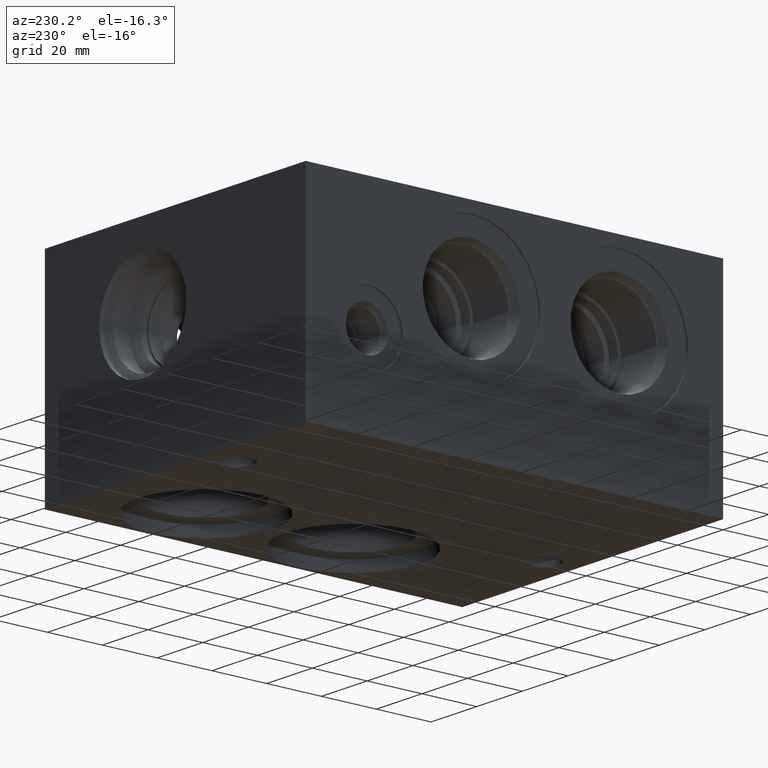
[diagram: clean part render]
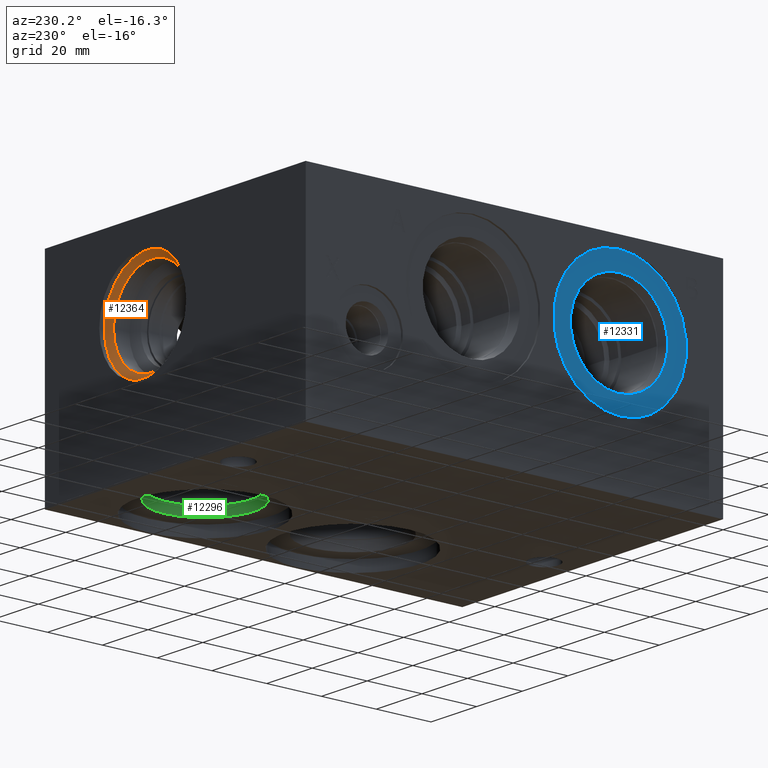
[diagram: same view with three faces highlighted in distinct colors, each labeled with its STEP entity id]
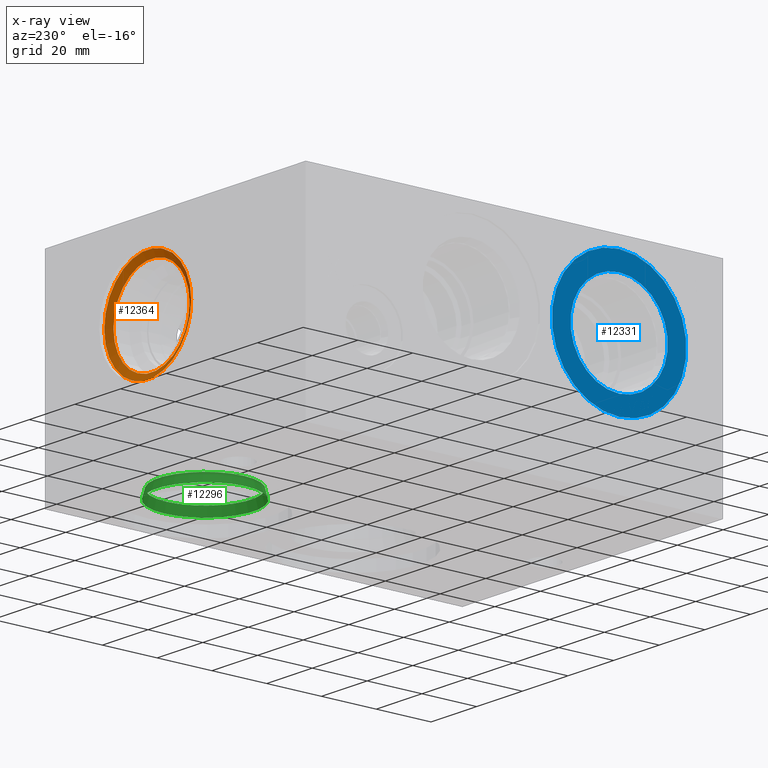
[diagram: x-ray of the same camera — body ghosted, the three highlighted faces saturated]
A machine part, auxiliary view with three faces highlighted in distinct colors.
The next image is the same camera in x-ray (body ghosted, the three faces saturated) — at least one of them is partly hidden behind the body in this view.
Their STEP definitions:

[orange] entity #12364 — the highlighted conical surface has half-angle 60 deg.
#53=CONICAL_SURFACE('',#13019,17.8562,1.04719755205012);
#309=CIRCLE('',#13017,19.05);
#310=CIRCLE('',#13018,19.05);
#311=CIRCLE('',#13020,16.6624);
#312=CIRCLE('',#13021,16.6624);
#1434=FACE_OUTER_BOUND('',#2138,.T.);
#2138=EDGE_LOOP('',(#10816,#10817,#10818,#10819,#10820,#10821));
#3286=LINE('',#21362,#4391);
#4391=VECTOR('',#15402,17.8562);
#5850=VERTEX_POINT('',#21355);
#5851=VERTEX_POINT('',#21357);
#5852=VERTEX_POINT('',#21361);
#5853=VERTEX_POINT('',#21363);
#7547=EDGE_CURVE('',#5850,#5851,#309,.T.);
#7548=EDGE_CURVE('',#5851,#5850,#310,.T.);
#7549=EDGE_CURVE('',#5850,#5852,#3286,.T.);
#7550=EDGE_CURVE('',#5852,#5853,#311,.T.);
#7551=EDGE_CURVE('',#5853,#5852,#312,.T.);
#10816=ORIENTED_EDGE('',*,*,#7548,.F.);
#10817=ORIENTED_EDGE('',*,*,#7547,.F.);
#10818=ORIENTED_EDGE('',*,*,#7549,.T.);
#10819=ORIENTED_EDGE('',*,*,#7550,.T.);
#10820=ORIENTED_EDGE('',*,*,#7551,.T.);
#10821=ORIENTED_EDGE('',*,*,#7549,.F.);
#12364=ADVANCED_FACE('',(#1434),#53,.F.);
#13017=AXIS2_PLACEMENT_3D('',#21358,#15396,#15397);
#13018=AXIS2_PLACEMENT_3D('',#21359,#15398,#15399);
#13019=AXIS2_PLACEMENT_3D('',#21360,#15400,#15401);
#13020=AXIS2_PLACEMENT_3D('',#21364,#15403,#15404);
#13021=AXIS2_PLACEMENT_3D('',#21365,#15405,#15406);
#15396=DIRECTION('center_axis',(0.,-1.,0.));
#15397=DIRECTION('ref_axis',(1.,0.,0.));
#15398=DIRECTION('center_axis',(0.,-1.,0.));
#15399=DIRECTION('ref_axis',(1.,0.,0.));
#15400=DIRECTION('center_axis',(0.,1.,0.));
#15401=DIRECTION('ref_axis',(1.,0.,0.));
#15402=DIRECTION('',(0.866025404211198,-0.499999999260832,1.06057523924754E-16));
#15403=DIRECTION('center_axis',(0.,-1.,0.));
#15404=DIRECTION('ref_axis',(1.,0.,0.));
#15405=DIRECTION('center_axis',(0.,-1.,0.));
#15406=DIRECTION('ref_axis',(1.,0.,0.));
#21355=CARTESIAN_POINT('',(52.3748,150.5712,47.625));
#21357=CARTESIAN_POINT('',(90.4748,150.5712,47.625));
#21358=CARTESIAN_POINT('Origin',(71.4248,150.5712,47.625));
#21359=CARTESIAN_POINT('Origin',(71.4248,150.5712,47.625));
#21360=CARTESIAN_POINT('Origin',(71.4248,149.88195925,47.625));
#21361=CARTESIAN_POINT('',(54.7624,149.1927185,47.625));
#21362=CARTESIAN_POINT('',(53.5686,149.88195925,47.625));
#21363=CARTESIAN_POINT('',(88.0872,149.1927185,47.625));
#21364=CARTESIAN_POINT('Origin',(71.4248,149.1927185,47.625));
#21365=CARTESIAN_POINT('Origin',(71.4248,149.1927185,47.625));

[blue] entity #12331 — the highlighted planar face has unit normal (1, 0, 0).
#253=CIRCLE('',#12928,24.5618);
#254=CIRCLE('',#12929,24.5618);
#255=CIRCLE('',#12931,17.7546);
#256=CIRCLE('',#12932,17.7546);
#483=FACE_BOUND('',#2100,.T.);
#843=PLANE('',#12930);
#1401=FACE_OUTER_BOUND('',#2099,.T.);
#2099=EDGE_LOOP('',(#10648,#10649));
#2100=EDGE_LOOP('',(#10650,#10651));
#5791=VERTEX_POINT('',#21180);
#5792=VERTEX_POINT('',#21182);
#5793=VERTEX_POINT('',#21186);
#5794=VERTEX_POINT('',#21187);
#7464=EDGE_CURVE('',#5791,#5792,#253,.T.);
#7465=EDGE_CURVE('',#5792,#5791,#254,.T.);
#7466=EDGE_CURVE('',#5793,#5794,#255,.T.);
#7467=EDGE_CURVE('',#5794,#5793,#256,.T.);
#10648=ORIENTED_EDGE('',*,*,#7465,.F.);
#10649=ORIENTED_EDGE('',*,*,#7464,.F.);
#10650=ORIENTED_EDGE('',*,*,#7466,.T.);
#10651=ORIENTED_EDGE('',*,*,#7467,.T.);
#12331=ADVANCED_FACE('',(#1401,#483),#843,.F.);
#12928=AXIS2_PLACEMENT_3D('',#21183,#15191,#15192);
#12929=AXIS2_PLACEMENT_3D('',#21184,#15193,#15194);
#12930=AXIS2_PLACEMENT_3D('',#21185,#15195,#15196);
#12931=AXIS2_PLACEMENT_3D('',#21188,#15197,#15198);
#12932=AXIS2_PLACEMENT_3D('',#21189,#15199,#15200);
#15191=DIRECTION('center_axis',(1.,0.,0.));
#15192=DIRECTION('ref_axis',(0.,0.,-1.));
#15193=DIRECTION('center_axis',(1.,0.,0.));
#15194=DIRECTION('ref_axis',(0.,0.,-1.));
#15195=DIRECTION('center_axis',(1.,0.,0.));
#15196=DIRECTION('ref_axis',(0.,0.,-1.));
#15197=DIRECTION('center_axis',(1.,0.,0.));
#15198=DIRECTION('ref_axis',(0.,0.,-1.));
#15199=DIRECTION('center_axis',(1.,0.,0.));
#15200=DIRECTION('ref_axis',(0.,0.,-1.));
#21180=CARTESIAN_POINT('',(0.7874,37.3126,23.0632));
#21182=CARTESIAN_POINT('',(0.7874,37.3126,72.1868));
#21183=CARTESIAN_POINT('Origin',(0.7874,37.3126,47.625));
#21184=CARTESIAN_POINT('Origin',(0.7874,37.3126,47.625));
#21185=CARTESIAN_POINT('Origin',(0.7874,37.3126,65.3796));
#21186=CARTESIAN_POINT('',(0.7874,37.3126,65.3796));
#21187=CARTESIAN_POINT('',(0.787399999999998,37.3126,29.8704));
#21188=CARTESIAN_POINT('Origin',(0.7874,37.3126,47.625));
#21189=CARTESIAN_POINT('Origin',(0.7874,37.3126,47.625));

[green] entity #12296 — the highlighted conical surface has half-angle 15 deg.
#26=CONICAL_SURFACE('',#12844,17.31645,0.261799389532321);
#202=CIRCLE('',#12842,17.7546);
#203=CIRCLE('',#12843,17.7546);
#204=CIRCLE('',#12845,16.8783);
#205=CIRCLE('',#12846,16.8783);
#1366=FACE_OUTER_BOUND('',#2059,.T.);
#2059=EDGE_LOOP('',(#10457,#10458,#10459,#10460,#10461,#10462));
#3236=LINE('',#20949,#4341);
#4341=VECTOR('',#15002,17.31645);
#5737=VERTEX_POINT('',#20943);
#5738=VERTEX_POINT('',#20944);
#5739=VERTEX_POINT('',#20948);
#5740=VERTEX_POINT('',#20950);
#7382=EDGE_CURVE('',#5737,#5738,#202,.T.);
#7383=EDGE_CURVE('',#5738,#5737,#203,.T.);
#7384=EDGE_CURVE('',#5738,#5739,#3236,.T.);
#7385=EDGE_CURVE('',#5739,#5740,#204,.T.);
#7386=EDGE_CURVE('',#5740,#5739,#205,.T.);
#10457=ORIENTED_EDGE('',*,*,#7382,.F.);
#10458=ORIENTED_EDGE('',*,*,#7383,.F.);
#10459=ORIENTED_EDGE('',*,*,#7384,.T.);
#10460=ORIENTED_EDGE('',*,*,#7385,.T.);
#10461=ORIENTED_EDGE('',*,*,#7386,.T.);
#10462=ORIENTED_EDGE('',*,*,#7384,.F.);
#12296=ADVANCED_FACE('',(#1366),#26,.F.);
#12842=AXIS2_PLACEMENT_3D('',#20945,#14996,#14997);
#12843=AXIS2_PLACEMENT_3D('',#20946,#14998,#14999);
#12844=AXIS2_PLACEMENT_3D('',#20947,#15000,#15001);
#12845=AXIS2_PLACEMENT_3D('',#20951,#15003,#15004);
#12846=AXIS2_PLACEMENT_3D('',#20952,#15005,#15006);
#14996=DIRECTION('center_axis',(0.,0.,1.));
#14997=DIRECTION('ref_axis',(1.,0.,0.));
#14998=DIRECTION('center_axis',(0.,0.,1.));
#14999=DIRECTION('ref_axis',(1.,0.,0.));
#15000=DIRECTION('center_axis',(0.,0.,-1.));
#15001=DIRECTION('ref_axis',(1.,0.,0.));
#15002=DIRECTION('',(0.258819046776636,3.16961917193377E-17,0.96592582584049));
#15003=DIRECTION('center_axis',(0.,0.,1.));
#15004=DIRECTION('ref_axis',(1.,0.,0.));
#15005=DIRECTION('center_axis',(0.,0.,1.));
#15006=DIRECTION('ref_axis',(1.,0.,0.));
#20943=CARTESIAN_POINT('',(106.6546,115.0874,4.064));
#20944=CARTESIAN_POINT('',(71.1454,115.0874,4.064));
#20945=CARTESIAN_POINT('Origin',(88.9,115.0874,4.064));
#20946=CARTESIAN_POINT('Origin',(88.9,115.0874,4.064));
#20947=CARTESIAN_POINT('Origin',(88.9,115.0874,5.69919805));
#20948=CARTESIAN_POINT('',(72.0217,115.0874,7.3343961));
#20949=CARTESIAN_POINT('',(71.58355,115.0874,5.69919805));
#20950=CARTESIAN_POINT('',(105.7783,115.0874,7.3343961));
#20951=CARTESIAN_POINT('Origin',(88.9,115.0874,7.3343961));
#20952=CARTESIAN_POINT('Origin',(88.9,115.0874,7.3343961));